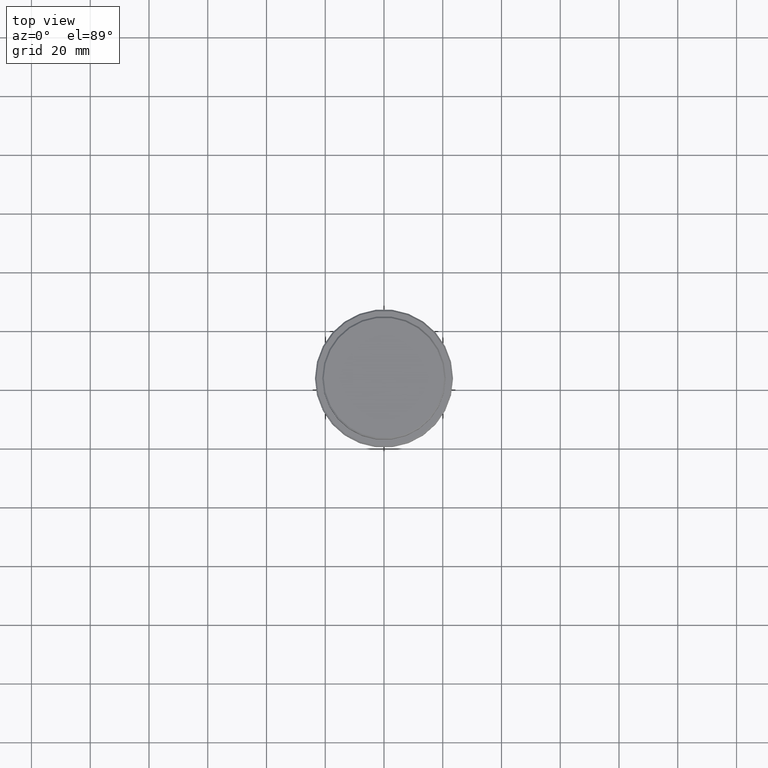
[diagram: clean part render]
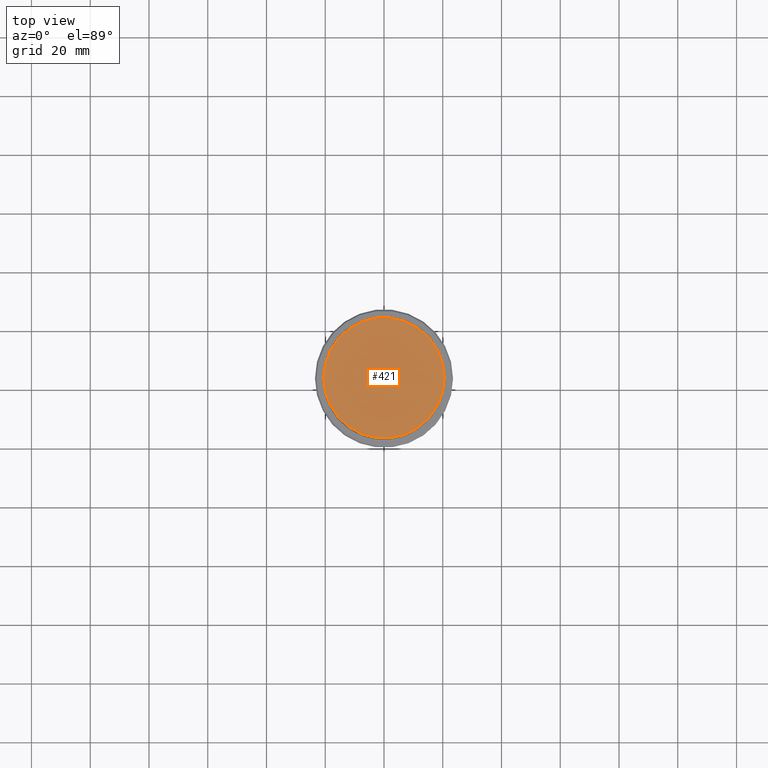
[diagram: same view with one face highlighted and labeled with its STEP entity id]
A machine part, top view. The second image highlights one B-rep face of the part: STEP entity #421.
In plain terms, the highlighted planar face has unit normal (0, -0, 1).
Its self-contained STEP definition (entity closure, byte-faithful):
#62 = CARTESIAN_POINT ( 'NONE',  ( 0.000000000000000000, 0.000000000000000000, 0.000000000000000000 ) ) ;
#152 = CARTESIAN_POINT ( 'NONE',  ( 20.49999999999993605, 2.541142108230753930E-15, 0.000000000000000000 ) ) ;
#252 = ORIENTED_EDGE ( 'NONE', *, *, #727, .T. ) ;
#271 = PLANE ( 'NONE',  #1417 ) ;
#340 = EDGE_LOOP ( 'NONE', ( #1414, #252 ) ) ;
#406 = EDGE_CURVE ( 'NONE', #609, #713, #1091, .T. ) ;
#421 = ADVANCED_FACE ( 'NONE', ( #1041 ), #271, .T. ) ;
#433 = AXIS2_PLACEMENT_3D ( 'NONE', #946, #724, #1055 ) ;
#498 = DIRECTION ( 'NONE',  ( 0.000000000000000000, -0.000000000000000000, 1.000000000000000000 ) ) ;
#513 = DIRECTION ( 'NONE',  ( 1.000000000000000000, 0.000000000000000000, 0.000000000000000000 ) ) ;
#589 = CARTESIAN_POINT ( 'NONE',  ( 0.000000000000000000, 0.000000000000000000, 0.000000000000000000 ) ) ;
#606 = AXIS2_PLACEMENT_3D ( 'NONE', #589, #924, #818 ) ;
#609 = VERTEX_POINT ( 'NONE', #1331 ) ;
#713 = VERTEX_POINT ( 'NONE', #152 ) ;
#724 = DIRECTION ( 'NONE',  ( -0.000000000000000000, -0.000000000000000000, 1.000000000000000000 ) ) ;
#727 = EDGE_CURVE ( 'NONE', #713, #609, #1347, .T. ) ;
#818 = DIRECTION ( 'NONE',  ( 1.000000000000000000, 0.000000000000000000, 0.000000000000000000 ) ) ;
#924 = DIRECTION ( 'NONE',  ( -0.000000000000000000, -0.000000000000000000, 1.000000000000000000 ) ) ;
#946 = CARTESIAN_POINT ( 'NONE',  ( 0.000000000000000000, 0.000000000000000000, 0.000000000000000000 ) ) ;
#1041 = FACE_OUTER_BOUND ( 'NONE', #340, .T. ) ;
#1055 = DIRECTION ( 'NONE',  ( 1.000000000000000000, 0.000000000000000000, 0.000000000000000000 ) ) ;
#1091 = CIRCLE ( 'NONE', #606, 20.49999999999993605 ) ;
#1331 = CARTESIAN_POINT ( 'NONE',  ( -20.49999999999993605, 0.000000000000000000, 0.000000000000000000 ) ) ;
#1347 = CIRCLE ( 'NONE', #433, 20.49999999999993605 ) ;
#1414 = ORIENTED_EDGE ( 'NONE', *, *, #406, .T. ) ;
#1417 = AXIS2_PLACEMENT_3D ( 'NONE', #62, #498, #513 ) ;